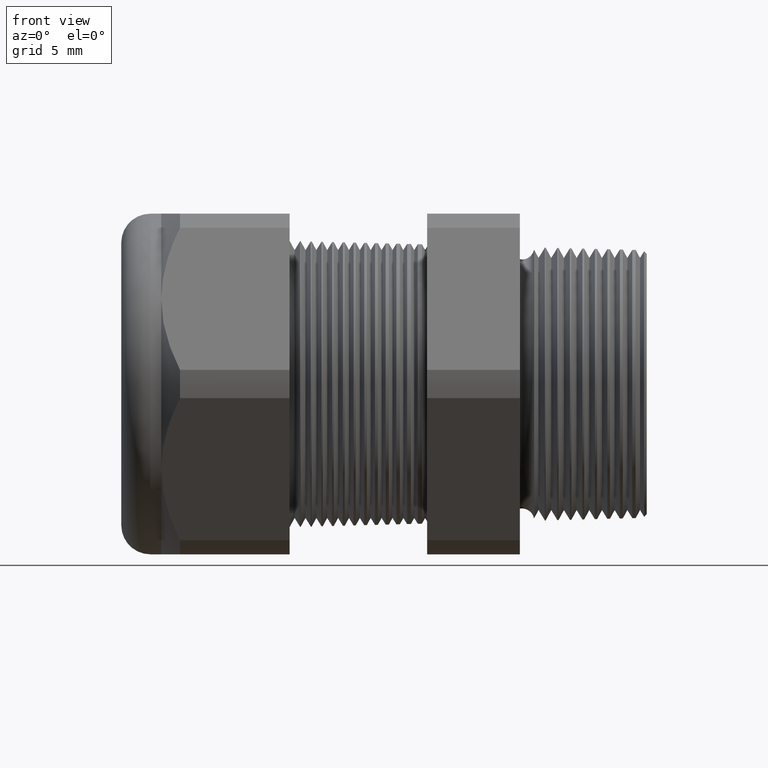
[diagram: clean part render]
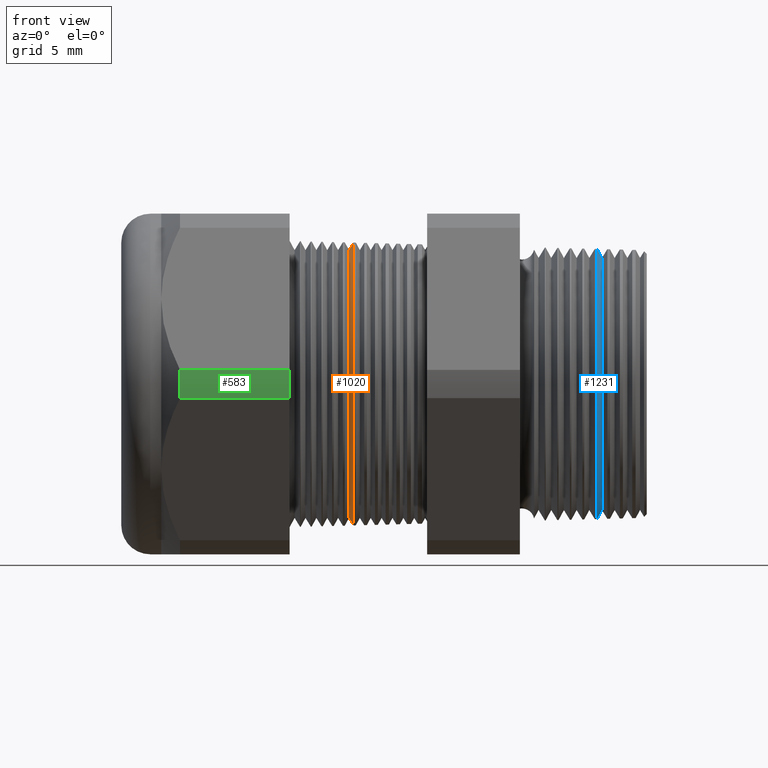
[diagram: same view with three faces highlighted in distinct colors, each labeled with its STEP entity id]
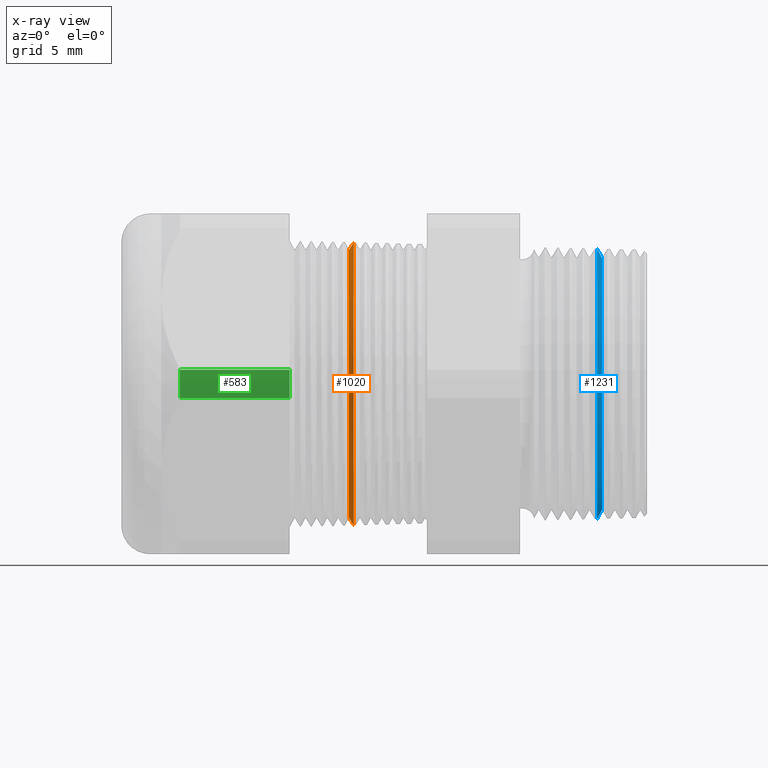
[diagram: x-ray of the same camera — body ghosted, the three highlighted faces saturated]
A machine part, front view with three faces highlighted in distinct colors.
The next image is the same camera in x-ray (body ghosted, the three faces saturated) — at least one of them is partly hidden behind the body in this view.
Their STEP definitions:

[orange] entity #1020 — the highlighted conical surface has half-angle 58.5 deg.
#129 = VERTEX_POINT ( 'NONE', #2118 ) ;
#130 = VERTEX_POINT ( 'NONE', #2117 ) ;
#132 = EDGE_CURVE ( 'NONE', #130, #133, #2116, .T. ) ;
#133 = VERTEX_POINT ( 'NONE', #2112 ) ;
#136 = VERTEX_POINT ( 'NONE', #2106 ) ;
#138 = EDGE_CURVE ( 'NONE', #129, #136, #2105, .T. ) ;
#469 = EDGE_CURVE ( 'NONE', #136, #133, #2733, .T. ) ;
#1017 = EDGE_CURVE ( 'NONE', #130, #129, #3763, .T. ) ;
#1020 = ADVANCED_FACE ( 'NONE', ( #3759 ), #3758, .T. ) ;
#1021 = EDGE_LOOP ( 'NONE', ( #1022, #1023, #1024, #1025 ) ) ;
#1022 = ORIENTED_EDGE ( 'NONE', *, *, #132, .F. ) ;
#1023 = ORIENTED_EDGE ( 'NONE', *, *, #1017, .T. ) ;
#1024 = ORIENTED_EDGE ( 'NONE', *, *, #138, .T. ) ;
#1025 = ORIENTED_EDGE ( 'NONE', *, *, #469, .T. ) ;
#2102 = DIRECTION ( 'NONE',  ( 0.5224985647159337000, 0.0000000000000000000, -0.8526401643541013900 ) ) ;
#2103 = VECTOR ( 'NONE', #2102, 39.37007874015748900 ) ;
#2104 = CARTESIAN_POINT ( 'NONE',  ( -0.7816586839320379700, 0.0000000000000000000, -0.3696307351718083300 ) ) ;
#2105 = LINE ( 'NONE', #2104, #2103 ) ;
#2106 = CARTESIAN_POINT ( 'NONE',  ( -0.7689444478578336700, 4.780757593680977100E-017, -0.3903784827600518800 ) ) ;
#2112 = CARTESIAN_POINT ( 'NONE',  ( -0.7689444478578336700, 0.0000000000000000000, 0.3903784827600518800 ) ) ;
#2113 = DIRECTION ( 'NONE',  ( 0.5224985647159337000, 1.044183048100723500E-016, 0.8526401643541013900 ) ) ;
#2114 = VECTOR ( 'NONE', #2113, 39.37007874015748900 ) ;
#2115 = CARTESIAN_POINT ( 'NONE',  ( -0.7816586839320379700, 4.526670966946380000E-017, 0.3696307351718083300 ) ) ;
#2116 = LINE ( 'NONE', #2115, #2114 ) ;
#2117 = CARTESIAN_POINT ( 'NONE',  ( -0.7816586839320379700, 0.0000000000000000000, 0.3696307351718083300 ) ) ;
#2118 = CARTESIAN_POINT ( 'NONE',  ( -0.7816586839320379700, 4.657614643428047800E-017, -0.3696307351718083300 ) ) ;
#2729 = DIRECTION ( 'NONE',  ( 0.0000000000000000000, 0.0000000000000000000, -1.000000000000000000 ) ) ;
#2730 = DIRECTION ( 'NONE',  ( -1.000000000000000000, 0.0000000000000000000, 0.0000000000000000000 ) ) ;
#2731 = CARTESIAN_POINT ( 'NONE',  ( -0.7689444478578336700, 0.0000000000000000000, 0.0000000000000000000 ) ) ;
#2732 = AXIS2_PLACEMENT_3D ( 'NONE', #2731, #2730, #2729 ) ;
#2733 = CIRCLE ( 'NONE', #2732, 0.3903784827600518800 ) ;
#3699 = CARTESIAN_POINT ( 'NONE',  ( -0.7816586839320379700, 0.0000000000000000000, 0.0000000000000000000 ) ) ;
#3753 = DIRECTION ( 'NONE',  ( 0.0000000000000000000, 0.0000000000000000000, -1.000000000000000000 ) ) ;
#3754 = DIRECTION ( 'NONE',  ( 1.000000000000000000, 0.0000000000000000000, 0.0000000000000000000 ) ) ;
#3755 = CARTESIAN_POINT ( 'NONE',  ( -0.7816586839320379700, 0.0000000000000000000, 0.0000000000000000000 ) ) ;
#3756 = AXIS2_PLACEMENT_3D ( 'NONE', #3755, #3754, #3753 ) ;
#3758 = CONICAL_SURFACE ( 'NONE', #3756, 0.3696307351718083300, 1.021017612416700500 ) ;
#3759 = FACE_OUTER_BOUND ( 'NONE', #1021, .T. ) ;
#3760 = DIRECTION ( 'NONE',  ( 0.0000000000000000000, 0.0000000000000000000, -1.000000000000000000 ) ) ;
#3761 = DIRECTION ( 'NONE',  ( 1.000000000000000000, 0.0000000000000000000, 0.0000000000000000000 ) ) ;
#3762 = AXIS2_PLACEMENT_3D ( 'NONE', #3699, #3761, #3760 ) ;
#3763 = CIRCLE ( 'NONE', #3762, 0.3696307351718083300 ) ;

[blue] entity #1231 — the highlighted conical surface has half-angle 61.5 deg.
#384 = EDGE_CURVE ( 'NONE', #1656, #1653, #2594, .T. ) ;
#1161 = ORIENTED_EDGE ( 'NONE', *, *, #1659, .T. ) ;
#1162 = ORIENTED_EDGE ( 'NONE', *, *, #384, .T. ) ;
#1231 = ADVANCED_FACE ( 'NONE', ( #4007 ), #4006, .T. ) ;
#1232 = EDGE_LOOP ( 'NONE', ( #1233, #1234, #1161, #1162 ) ) ;
#1233 = ORIENTED_EDGE ( 'NONE', *, *, #1652, .F. ) ;
#1234 = ORIENTED_EDGE ( 'NONE', *, *, #1235, .F. ) ;
#1235 = EDGE_CURVE ( 'NONE', #1700, #1644, #4005, .T. ) ;
#1644 = VERTEX_POINT ( 'NONE', #4754 ) ;
#1652 = EDGE_CURVE ( 'NONE', #1644, #1653, #4746, .T. ) ;
#1653 = VERTEX_POINT ( 'NONE', #4738 ) ;
#1656 = VERTEX_POINT ( 'NONE', #4732 ) ;
#1659 = EDGE_CURVE ( 'NONE', #1700, #1656, #4731, .T. ) ;
#1700 = VERTEX_POINT ( 'NONE', #4833 ) ;
#2590 = DIRECTION ( 'NONE',  ( 0.0000000000000000000, 0.0000000000000000000, 1.000000000000000000 ) ) ;
#2591 = DIRECTION ( 'NONE',  ( 1.000000000000000000, 0.0000000000000000000, 0.0000000000000000000 ) ) ;
#2592 = CARTESIAN_POINT ( 'NONE',  ( -0.09697120011612865600, 0.0000000000000000000, 0.0000000000000000000 ) ) ;
#2593 = AXIS2_PLACEMENT_3D ( 'NONE', #2592, #2591, #2590 ) ;
#2594 = CIRCLE ( 'NONE', #2593, 0.3727822439981005600 ) ;
#3997 = DIRECTION ( 'NONE',  ( 0.0000000000000000000, 0.0000000000000000000, -1.000000000000000000 ) ) ;
#3998 = DIRECTION ( 'NONE',  ( 1.000000000000000000, 0.0000000000000000000, 0.0000000000000000000 ) ) ;
#3999 = CARTESIAN_POINT ( 'NONE',  ( -0.08347073567907513400, 0.0000000000000000000, 0.0000000000000000000 ) ) ;
#4000 = AXIS2_PLACEMENT_3D ( 'NONE', #3999, #3998, #3997 ) ;
#4001 = DIRECTION ( 'NONE',  ( 0.0000000000000000000, 0.0000000000000000000, 1.000000000000000000 ) ) ;
#4002 = DIRECTION ( 'NONE',  ( -1.000000000000000000, 0.0000000000000000000, 0.0000000000000000000 ) ) ;
#4003 = CARTESIAN_POINT ( 'NONE',  ( -0.09999999999999996400, 0.0000000000000000000, 0.0000000000000000000 ) ) ;
#4004 = AXIS2_PLACEMENT_3D ( 'NONE', #4003, #4002, #4001 ) ;
#4005 = CIRCLE ( 'NONE', #4000, 0.3479174816500060800 ) ;
#4006 = CONICAL_SURFACE ( 'NONE', #4004, 0.3783605994438361000, 1.073377489976500100 ) ;
#4007 = FACE_OUTER_BOUND ( 'NONE', #1232, .T. ) ;
#4728 = DIRECTION ( 'NONE',  ( -0.4771587602596195100, 0.0000000000000000000, 0.8788171126619593900 ) ) ;
#4729 = VECTOR ( 'NONE', #4728, 39.37007874015748100 ) ;
#4730 = CARTESIAN_POINT ( 'NONE',  ( -0.09999999999999996400, 0.0000000000000000000, 0.3783605994438361000 ) ) ;
#4731 = LINE ( 'NONE', #4730, #4729 ) ;
#4732 = CARTESIAN_POINT ( 'NONE',  ( -0.09697120011612865600, 0.0000000000000000000, 0.3727822439981005600 ) ) ;
#4738 = CARTESIAN_POINT ( 'NONE',  ( -0.09697120011612865600, 4.566254087767697100E-017, -0.3727822439981005600 ) ) ;
#4739 = DIRECTION ( 'NONE',  ( -0.4771587602596195100, 1.076240564057387400E-016, -0.8788171126619593900 ) ) ;
#4740 = VECTOR ( 'NONE', #4739, 39.37007874015748100 ) ;
#4741 = CARTESIAN_POINT ( 'NONE',  ( -0.09999999999999996400, 4.633580970323677100E-017, -0.3783605994438361000 ) ) ;
#4746 = LINE ( 'NONE', #4741, #4740 ) ;
#4754 = CARTESIAN_POINT ( 'NONE',  ( -0.08347073567907513400, 4.413013060806647500E-017, -0.3479174816500060800 ) ) ;
#4833 = CARTESIAN_POINT ( 'NONE',  ( -0.08347073567907513400, 0.0000000000000000000, 0.3479174816500060800 ) ) ;

[green] entity #583 — the highlighted cylindrical surface (partial cylindrical patch) has radius 13.2512 mm, axis along (-1, 0, 0).
#579 = EDGE_CURVE ( 'NONE', #580, #606, #2988, .T. ) ;
#580 = VERTEX_POINT ( 'NONE', #2984 ) ;
#583 = ADVANCED_FACE ( 'NONE', ( #2979 ), #2978, .T. ) ;
#584 = EDGE_LOOP ( 'NONE', ( #585, #586, #589, #592 ) ) ;
#585 = ORIENTED_EDGE ( 'NONE', *, *, #579, .T. ) ;
#586 = ORIENTED_EDGE ( 'NONE', *, *, #587, .T. ) ;
#587 = EDGE_CURVE ( 'NONE', #606, #588, #2971, .T. ) ;
#588 = VERTEX_POINT ( 'NONE', #3030 ) ;
#589 = ORIENTED_EDGE ( 'NONE', *, *, #590, .F. ) ;
#590 = EDGE_CURVE ( 'NONE', #591, #588, #3029, .T. ) ;
#591 = VERTEX_POINT ( 'NONE', #3025 ) ;
#592 = ORIENTED_EDGE ( 'NONE', *, *, #645, .F. ) ;
#606 = VERTEX_POINT ( 'NONE', #3053 ) ;
#645 = EDGE_CURVE ( 'NONE', #580, #591, #3130, .T. ) ;
#2225 = CARTESIAN_POINT ( 'NONE',  ( -1.248063779527559300, 0.0000000000000000000, 0.0000000000000000000 ) ) ;
#2479 = AXIS2_PLACEMENT_3D ( 'NONE', #2225, #2726, #2727 ) ;
#2726 = DIRECTION ( 'NONE',  ( 1.000000000000000000, 0.0000000000000000000, 0.0000000000000000000 ) ) ;
#2727 = DIRECTION ( 'NONE',  ( 0.0000000000000000000, 0.0000000000000000000, -1.000000000000000000 ) ) ;
#2971 = CIRCLE ( 'NONE', #2479, 0.5217000000000000500 ) ;
#2973 = DIRECTION ( 'NONE',  ( 0.0000000000000000000, 0.0000000000000000000, 1.000000000000000000 ) ) ;
#2974 = DIRECTION ( 'NONE',  ( -1.000000000000000000, 0.0000000000000000000, 0.0000000000000000000 ) ) ;
#2975 = CARTESIAN_POINT ( 'NONE',  ( 0.04000000000000011900, 0.0000000000000000000, 0.0000000000000000000 ) ) ;
#2976 = AXIS2_PLACEMENT_3D ( 'NONE', #2975, #2974, #2973 ) ;
#2978 = CYLINDRICAL_SURFACE ( 'NONE', #2976, 0.5217000000000000500 ) ;
#2979 = FACE_OUTER_BOUND ( 'NONE', #584, .T. ) ;
#2984 = CARTESIAN_POINT ( 'NONE',  ( -0.9454330708661420300, -0.5202473208008777700, 0.03890520787129464500 ) ) ;
#2985 = DIRECTION ( 'NONE',  ( -1.000000000000000000, 0.0000000000000000000, 0.0000000000000000000 ) ) ;
#2986 = VECTOR ( 'NONE', #2985, 39.37007874015748100 ) ;
#2987 = CARTESIAN_POINT ( 'NONE',  ( 0.04000000000000011900, -0.5202473208008777700, 0.03890520787129464500 ) ) ;
#2988 = LINE ( 'NONE', #2987, #2986 ) ;
#3025 = CARTESIAN_POINT ( 'NONE',  ( -0.9454330708661420300, -0.5202473208008777700, -0.03890520787129494300 ) ) ;
#3026 = DIRECTION ( 'NONE',  ( -1.000000000000000000, 0.0000000000000000000, 0.0000000000000000000 ) ) ;
#3027 = VECTOR ( 'NONE', #3026, 39.37007874015748100 ) ;
#3028 = CARTESIAN_POINT ( 'NONE',  ( 0.04000000000000011900, -0.5202473208008777700, -0.03890520787129494300 ) ) ;
#3029 = LINE ( 'NONE', #3028, #3027 ) ;
#3030 = CARTESIAN_POINT ( 'NONE',  ( -1.248063779527559300, -0.5202473208008777700, -0.03890520787129500600 ) ) ;
#3053 = CARTESIAN_POINT ( 'NONE',  ( -1.248063779527559300, -0.5202473208008777700, 0.03890520787129464500 ) ) ;
#3126 = DIRECTION ( 'NONE',  ( 0.0000000000000000000, 0.0000000000000000000, -1.000000000000000000 ) ) ;
#3127 = DIRECTION ( 'NONE',  ( 1.000000000000000000, 0.0000000000000000000, 0.0000000000000000000 ) ) ;
#3128 = CARTESIAN_POINT ( 'NONE',  ( -0.9454330708661420300, 0.0000000000000000000, 0.0000000000000000000 ) ) ;
#3129 = AXIS2_PLACEMENT_3D ( 'NONE', #3128, #3127, #3126 ) ;
#3130 = CIRCLE ( 'NONE', #3129, 0.5217000000000000500 ) ;